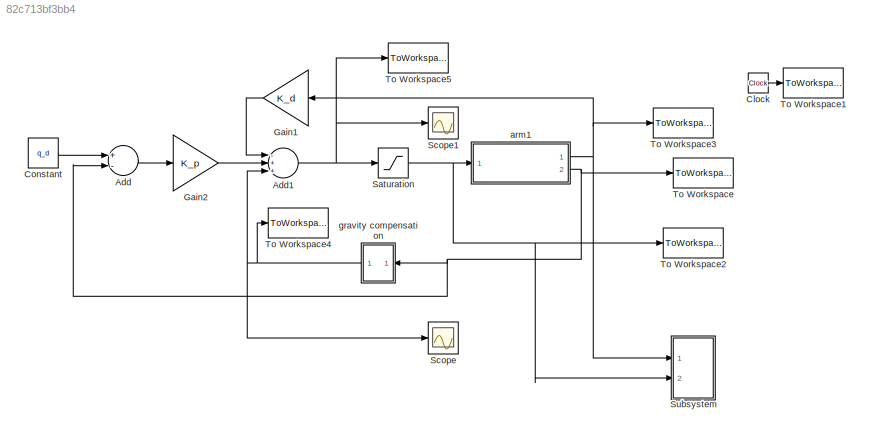
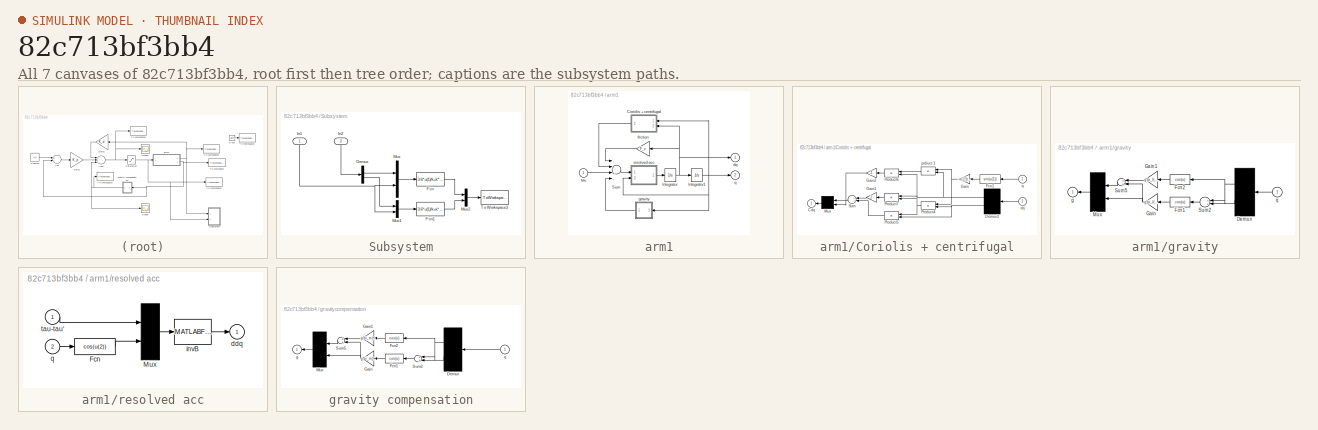
[diagram: thumbnail index - all 7 canvases of the model, root first then tree order]
MODEL slx_82c713bf3bb4
KIND model
BLOCK [Sum] Add
  InputSameDT = off
  Inputs = +-
  OutDataTypeStr = Inherit: Inherit via internal rule
  Ports = [2, 1]
  SaturateOnIntegerOverflow = off
BLOCK [Sum] Add1
  InputSameDT = off
  Inputs = -++
  OutDataTypeStr = Inherit: Inherit via internal rule
  Ports = [3, 1]
  SaturateOnIntegerOverflow = off
BLOCK [Clock] Clock
BLOCK [Constant] Constant
  SampleTime = [0.001,0]
  Value = q_d
BLOCK [Gain] Gain1
  Gain = K_d
  Multiplication = Matrix(K*u)
  OutDataTypeStr = Inherit: Inherit via internal rule
  ParamDataTypeStr = Inherit: Inherit via internal rule
  SaturateOnIntegerOverflow = off
BLOCK [Gain] Gain2
  Gain = K_p
  Multiplication = Matrix(K*u)
  OutDataTypeStr = Inherit: Inherit via internal rule
  ParamDataTypeStr = Inherit: Inherit via internal rule
  SaturateOnIntegerOverflow = off
BLOCK [Saturate] Saturation
  InputPortMap = u0
  LowerLimit = -0.08
  Ports = [1, 1]
  UpperLimit = 0.08
BLOCK [Scope] Scope
  DataFormat = StructureWithTime
  Floating = off
  NumInputPorts = 1
  Ports = [1]
  SampleTime = 0
  ShowLegends = off
BLOCK [Scope] Scope1
  DataFormat = StructureWithTime
  Floating = off
  NumInputPorts = 1
  Ports = [1]
  SampleTime = 0
  SaveName = ScopeData1
  ShowLegends = off
  TimeRange = 5
  YMax = 0.04
  YMin = 0
BLOCK [SubSystem] Subsystem
  Ports = [2]
  RequestExecContextInheritance = off
BLOCK [Demux] Subsystem/Demux
  DisplayOption = bar
  Outputs = 2
  Ports = [1, 2]
BLOCK [Fcn] Subsystem/Fcn
  Expr = 3.6*u(1)/k+k*u(2)
BLOCK [Fcn] Subsystem/Fcn1
  Expr = 3.6*u(1)/k+k*u(2)
BLOCK [Inport] Subsystem/In1
  IconDisplay = Port number
BLOCK [Inport] Subsystem/In2
  IconDisplay = Port number
  Port = 2
BLOCK [Mux] Subsystem/Mux
  DisplayOption = bar
  Inputs = 2
  Ports = [2, 1]
BLOCK [Mux] Subsystem/Mux1
  DisplayOption = bar
  Inputs = 2
  Ports = [2, 1]
BLOCK [Mux] Subsystem/Mux2
  DisplayOption = bar
  Inputs = 2
  Ports = [2, 1]
BLOCK [ToWorkspace] Subsystem/To Workspace3
  FixptAsFi = on
  MaxDataPoints = inf
  Ports = [1]
  SampleTime = -1
  Save2DSignal = 3-D array (concatenate along third dimension)
  VariableName = Vs
BLOCK [ToWorkspace] To Workspace
  FixptAsFi = on
  MaxDataPoints = inf
  Ports = [1]
  SampleTime = -1
  Save2DSignal = 3-D array (concatenate along third dimension)
  VariableName = q
BLOCK [ToWorkspace] To Workspace1
  FixptAsFi = on
  MaxDataPoints = inf
  Ports = [1]
  SampleTime = -1
  Save2DSignal = 3-D array (concatenate along third dimension)
  VariableName = t
BLOCK [ToWorkspace] To Workspace2
  FixptAsFi = on
  MaxDataPoints = inf
  Ports = [1]
  SampleTime = -1
  Save2DSignal = 3-D array (concatenate along third dimension)
  VariableName = u
BLOCK [ToWorkspace] To Workspace3
  FixptAsFi = on
  MaxDataPoints = inf
  Ports = [1]
  SampleTime = -1
  Save2DSignal = 3-D array (concatenate along third dimension)
  VariableName = dq
BLOCK [ToWorkspace] To Workspace4
  FixptAsFi = on
  MaxDataPoints = inf
  Ports = [1]
  SampleTime = -1
  Save2DSignal = 3-D array (concatenate along third dimension)
  VariableName = gq
BLOCK [ToWorkspace] To Workspace5
  FixptAsFi = on
  MaxDataPoints = inf
  Ports = [1]
  SampleTime = -1
  Save2DSignal = 3-D array (concatenate along third dimension)
  VariableName = u_b
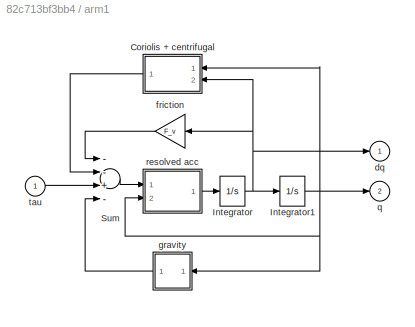
BLOCK [SubSystem] arm1
  Ports = [1, 2]
  RequestExecContextInheritance = off
  ShowPortLabels = none
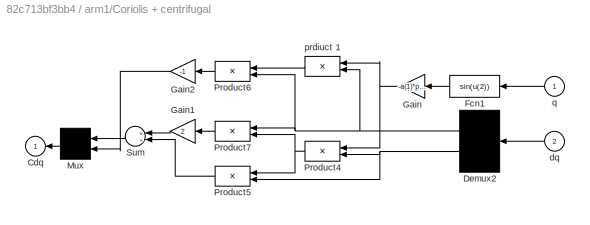
BLOCK [SubSystem] arm1/Coriolis + centrifugal
  Ports = [2, 1]
  RequestExecContextInheritance = off
  ShowPortLabels = none
BLOCK [Outport] arm1/Coriolis + centrifugal/Cdq
  IconDisplay = Port number
  InitialOutput = 0
BLOCK [Demux] arm1/Coriolis + centrifugal/Demux2
  Outputs = 2
  Ports = [1, 2]
BLOCK [Fcn] arm1/Coriolis + centrifugal/Fcn1
  Expr = sin(u(2))
BLOCK [Gain] arm1/Coriolis + centrifugal/Gain
  Gain = -a(1)*pi_l(3)
BLOCK [Gain] arm1/Coriolis + centrifugal/Gain1
  Gain = 2
BLOCK [Gain] arm1/Coriolis + centrifugal/Gain2
  Gain = -1
BLOCK [Mux] arm1/Coriolis + centrifugal/Mux
  Inputs = 2
  Ports = [2, 1]
BLOCK [Product] arm1/Coriolis + centrifugal/Product4
  Ports = [2, 1]
BLOCK [Product] arm1/Coriolis + centrifugal/Product5
  Ports = [2, 1]
BLOCK [Product] arm1/Coriolis + centrifugal/Product6
  Ports = [2, 1]
BLOCK [Product] arm1/Coriolis + centrifugal/Product7
  Ports = [2, 1]
BLOCK [Sum] arm1/Coriolis + centrifugal/Sum
  Ports = [2, 1]
BLOCK [Inport] arm1/Coriolis + centrifugal/dq
  IconDisplay = Port number
  Port = 2
BLOCK [Product] arm1/Coriolis + centrifugal/prdiuct 1
  Ports = [2, 1]
BLOCK [Inport] arm1/Coriolis + centrifugal/q
  IconDisplay = Port number
BLOCK [Integrator] arm1/Integrator
  InitialCondition = [0 0]
  Ports = [1, 1]
  ZeroCross = off
BLOCK [Integrator] arm1/Integrator1
  InitialCondition = q_i
  Ports = [1, 1]
  ZeroCross = off
BLOCK [Sum] arm1/Sum
  Inputs = --+-
  Ports = [4, 1]
BLOCK [Outport] arm1/dq
  IconDisplay = Port number
  InitialOutput = 0
BLOCK [Gain] arm1/friction
  Gain = F_v
  Multiplication = Matrix(K*u)
BLOCK [SubSystem] arm1/gravity
  Ports = [1, 1]
  RequestExecContextInheritance = off
  ShowPortLabels = none
BLOCK [Demux] arm1/gravity/Demux
  Outputs = 2
  Ports = [1, 2]
BLOCK [Fcn] arm1/gravity/Fcn1
  Expr = cos(u)
BLOCK [Fcn] arm1/gravity/Fcn2
  Expr = cos(u)
BLOCK [Gain] arm1/gravity/Gain
  Gain = g*pi_l(3)
BLOCK [Gain] arm1/gravity/Gain1
  Gain = g*pi_l(1)
BLOCK [Mux] arm1/gravity/Mux
  Inputs = 2
  Ports = [2, 1]
BLOCK [Sum] arm1/gravity/Sum2
  Ports = [2, 1]
BLOCK [Sum] arm1/gravity/Sum5
  Ports = [2, 1]
BLOCK [Outport] arm1/gravity/g
  IconDisplay = Port number
  InitialOutput = 0
BLOCK [Inport] arm1/gravity/q
  IconDisplay = Port number
BLOCK [Outport] arm1/q 
  IconDisplay = Port number
  InitialOutput = 0
  Port = 2
BLOCK [SubSystem] arm1/resolved acc
  Ports = [2, 1]
  RequestExecContextInheritance = off
  ShowPortLabels = none
BLOCK [Fcn] arm1/resolved acc/Fcn
  Expr = cos(u(2))
BLOCK [Mux] arm1/resolved acc/Mux
  Inputs = [2,1]
  Ports = [2, 1]
BLOCK [Outport] arm1/resolved acc/ddq
  IconDisplay = Port number
  InitialOutput = 0
BLOCK [MATLABFcn] arm1/resolved acc/invB 
  MATLABFcn = inv(iner_l(u(3)))*u(1:2)
  OutputDimensions = 2
  Ports = [1, 1]
BLOCK [Inport] arm1/resolved acc/q
  IconDisplay = Port number
  Port = 2
BLOCK [Inport] arm1/resolved acc/tau-tau'
  IconDisplay = Port number
BLOCK [Inport] arm1/tau
  IconDisplay = Port number
BLOCK [SubSystem] gravity compensation
  Ports = [1, 1]
  RequestExecContextInheritance = off
  ShowPortLabels = none
BLOCK [Demux] gravity compensation/Demux
  Outputs = 2
  Ports = [1, 2]
BLOCK [Fcn] gravity compensation/Fcn1
  Expr = cos(u)
  SampleTime = Tc
BLOCK [Fcn] gravity compensation/Fcn2
  Expr = cos(u)
  SampleTime = Tc
BLOCK [Gain] gravity compensation/Gain
  Gain = g*pi_m(3)
BLOCK [Gain] gravity compensation/Gain1
  Gain = g*pi_m(1)
BLOCK [Mux] gravity compensation/Mux
  Inputs = 2
  Ports = [2, 1]
BLOCK [Sum] gravity compensation/Sum2
  Ports = [2, 1]
  SampleTime = Tc
BLOCK [Sum] gravity compensation/Sum5
  Ports = [2, 1]
BLOCK [Outport] gravity compensation/g
  IconDisplay = Port number
  InitialOutput = 0
BLOCK [Inport] gravity compensation/q
  IconDisplay = Port number
NET Add1:1 -> Saturation:1, Scope1:1, To Workspace5:1
LINE Add:1 -> Gain2:1
LINE Clock:1 -> To Workspace1:1
LINE Constant:1 -> Add:1
LINE Gain1:1 -> Add1:1
LINE Gain2:1 -> Add1:2
NET Saturation:1 -> Subsystem:2, To Workspace2:1, arm1:1
LINE Subsystem/Demux:1 -> Subsystem/Mux:1
LINE Subsystem/Demux:2 -> Subsystem/Mux1:1
LINE Subsystem/Fcn1:1 -> Subsystem/Mux2:2
LINE Subsystem/Fcn:1 -> Subsystem/Mux2:1
NET Subsystem/In1:1 -> Subsystem/Mux1:2, Subsystem/Mux:2
LINE Subsystem/In2:1 -> Subsystem/Demux:1
LINE Subsystem/Mux1:1 -> Subsystem/Fcn1:1
LINE Subsystem/Mux2:1 -> Subsystem/To Workspace3:1
LINE Subsystem/Mux:1 -> Subsystem/Fcn:1
NET arm1/Coriolis + centrifugal/Demux2:1 -> arm1/Coriolis + centrifugal/Product6:2, arm1/Coriolis + centrifugal/Product7:1, arm1/Coriolis + centrifugal/prdiuct 1:2
NET arm1/Coriolis + centrifugal/Demux2:2 -> arm1/Coriolis + centrifugal/Product4:2, arm1/Coriolis + centrifugal/Product5:2
LINE arm1/Coriolis + centrifugal/Fcn1:1 -> arm1/Coriolis + centrifugal/Gain:1
LINE arm1/Coriolis + centrifugal/Gain1:1 -> arm1/Coriolis + centrifugal/Sum:1
LINE arm1/Coriolis + centrifugal/Gain2:1 -> arm1/Coriolis + centrifugal/Mux:2
NET arm1/Coriolis + centrifugal/Gain:1 -> arm1/Coriolis + centrifugal/Product4:1, arm1/Coriolis + centrifugal/prdiuct 1:1
LINE arm1/Coriolis + centrifugal/Mux:1 -> arm1/Coriolis + centrifugal/Cdq:1
NET arm1/Coriolis + centrifugal/Product4:1 -> arm1/Coriolis + centrifugal/Product5:1, arm1/Coriolis + centrifugal/Product7:2
LINE arm1/Coriolis + centrifugal/Product5:1 -> arm1/Coriolis + centrifugal/Sum:2
LINE arm1/Coriolis + centrifugal/Product6:1 -> arm1/Coriolis + centrifugal/Gain2:1
LINE arm1/Coriolis + centrifugal/Product7:1 -> arm1/Coriolis + centrifugal/Gain1:1
LINE arm1/Coriolis + centrifugal/Sum:1 -> arm1/Coriolis + centrifugal/Mux:1
LINE arm1/Coriolis + centrifugal/dq:1 -> arm1/Coriolis + centrifugal/Demux2:1
LINE arm1/Coriolis + centrifugal/prdiuct 1:1 -> arm1/Coriolis + centrifugal/Product6:1
LINE arm1/Coriolis + centrifugal/q:1 -> arm1/Coriolis + centrifugal/Fcn1:1
LINE arm1/Coriolis + centrifugal:1 -> arm1/Sum:2
NET arm1/Integrator1:1 -> arm1/Coriolis + centrifugal:1, arm1/gravity:1, arm1/q :1, arm1/resolved acc:2
NET arm1/Integrator:1 -> arm1/Coriolis + centrifugal:2, arm1/Integrator1:1, arm1/dq:1, arm1/friction:1
LINE arm1/Sum:1 -> arm1/resolved acc:1
LINE arm1/friction:1 -> arm1/Sum:1
NET arm1/gravity/Demux:1 -> arm1/gravity/Fcn2:1, arm1/gravity/Sum2:1
LINE arm1/gravity/Demux:2 -> arm1/gravity/Sum2:2
LINE arm1/gravity/Fcn1:1 -> arm1/gravity/Gain:1
LINE arm1/gravity/Fcn2:1 -> arm1/gravity/Gain1:1
LINE arm1/gravity/Gain1:1 -> arm1/gravity/Sum5:1
NET arm1/gravity/Gain:1 -> arm1/gravity/Mux:2, arm1/gravity/Sum5:2
LINE arm1/gravity/Mux:1 -> arm1/gravity/g:1
LINE arm1/gravity/Sum2:1 -> arm1/gravity/Fcn1:1
LINE arm1/gravity/Sum5:1 -> arm1/gravity/Mux:1
LINE arm1/gravity/q:1 -> arm1/gravity/Demux:1
LINE arm1/gravity:1 -> arm1/Sum:4
LINE arm1/resolved acc/Fcn:1 -> arm1/resolved acc/Mux:2
LINE arm1/resolved acc/Mux:1 -> arm1/resolved acc/invB :1
LINE arm1/resolved acc/invB :1 -> arm1/resolved acc/ddq:1
LINE arm1/resolved acc/q:1 -> arm1/resolved acc/Fcn:1
LINE arm1/resolved acc/tau-tau':1 -> arm1/resolved acc/Mux:1
LINE arm1/resolved acc:1 -> arm1/Integrator:1
LINE arm1/tau:1 -> arm1/Sum:3
NET arm1:1 -> Gain1:1, Subsystem:1, To Workspace3:1
NET arm1:2 -> Add:2, To Workspace:1, gravity compensation:1
NET gravity compensation/Demux:1 -> gravity compensation/Fcn2:1, gravity compensation/Sum2:1
LINE gravity compensation/Demux:2 -> gravity compensation/Sum2:2
LINE gravity compensation/Fcn1:1 -> gravity compensation/Gain:1
LINE gravity compensation/Fcn2:1 -> gravity compensation/Gain1:1
LINE gravity compensation/Gain1:1 -> gravity compensation/Sum5:1
NET gravity compensation/Gain:1 -> gravity compensation/Mux:2, gravity compensation/Sum5:2
LINE gravity compensation/Mux:1 -> gravity compensation/g:1
LINE gravity compensation/Sum2:1 -> gravity compensation/Fcn1:1
LINE gravity compensation/Sum5:1 -> gravity compensation/Mux:1
LINE gravity compensation/q:1 -> gravity compensation/Demux:1
NET gravity compensation:1 -> Add1:3, Scope:1, To Workspace4:1
note: NET lines group one-source signal fan-out (src -> all destinations, sorted); 1:1 wires keep LINE
